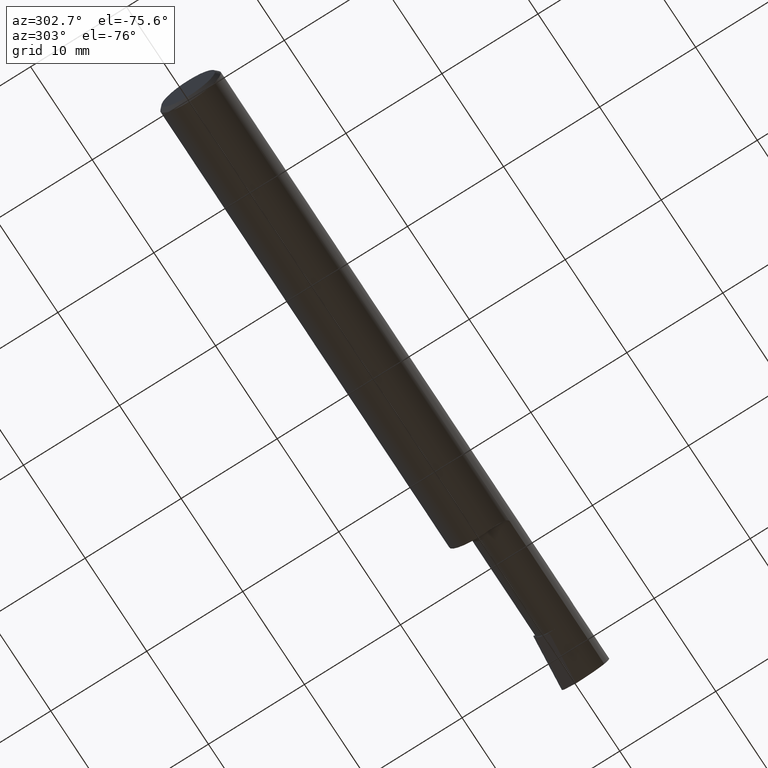
[diagram: clean part render]
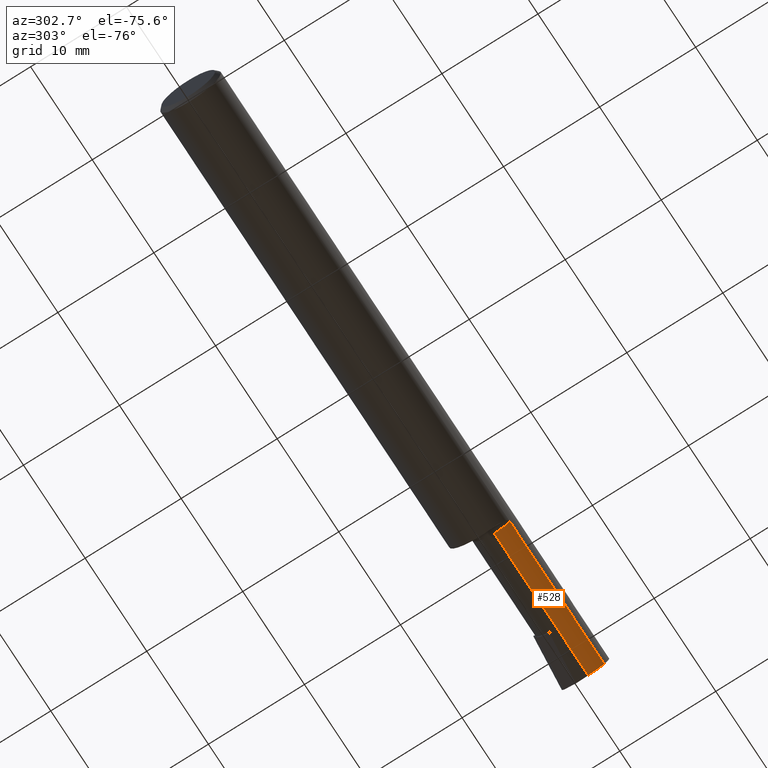
[diagram: same view with one face highlighted and labeled with its STEP entity id]
A machine part, auxiliary view. The second image highlights one B-rep face of the part: STEP entity #528.
In plain terms, the highlighted cylindrical surface (edge-blend (fillet) strip) has radius 2.2644 mm, axis along (-1, -0, -0).
Its self-contained STEP definition (entity closure, byte-faithful):
#3 = EDGE_LOOP ( 'NONE', ( #512, #264, #67, #202, #160 ) ) ;
#24 = DIRECTION ( 'NONE',  ( 0.0000000000000000000, 0.0000000000000000000, 1.000000000000000000 ) ) ;
#67 = ORIENTED_EDGE ( 'NONE', *, *, #630, .F. ) ;
#85 = CARTESIAN_POINT ( 'NONE',  ( 2.084999999999999964, -0.1088159090909091853, -0.06120964326573867520 ) ) ;
#123 = EDGE_CURVE ( 'NONE', #701, #224, #559, .T. ) ;
#136 = EDGE_CURVE ( 'NONE', #564, #238, #516, .T. ) ;
#160 = ORIENTED_EDGE ( 'NONE', *, *, #167, .F. ) ;
#167 = EDGE_CURVE ( 'NONE', #224, #238, #634, .T. ) ;
#202 = ORIENTED_EDGE ( 'NONE', *, *, #136, .T. ) ;
#205 = CYLINDRICAL_SURFACE ( 'NONE', #411, 0.08914999999999995151 ) ;
#206 = VECTOR ( 'NONE', #555, 39.37007874015748143 ) ;
#224 = VERTEX_POINT ( 'NONE', #663 ) ;
#238 = VERTEX_POINT ( 'NONE', #515 ) ;
#248 = CARTESIAN_POINT ( 'NONE',  ( 0.0000000000000000000, -0.04399999999999999745, 0.0000000000000000000 ) ) ;
#263 = CARTESIAN_POINT ( 'NONE',  ( 0.0000000000000000000, -0.04399999999999998357, -0.08914999999999995151 ) ) ;
#264 = ORIENTED_EDGE ( 'NONE', *, *, #552, .F. ) ;
#277 = DIRECTION ( 'NONE',  ( -1.000000000000000000, -0.0000000000000000000, -0.0000000000000000000 ) ) ;
#281 = CARTESIAN_POINT ( 'NONE',  ( 1.885000000000000009, -0.04399999999999999745, 0.0000000000000000000 ) ) ;
#338 = CARTESIAN_POINT ( 'NONE',  ( 2.485982323393565174, -0.04399999999999999745, -0.08914999999999999314 ) ) ;
#388 = CARTESIAN_POINT ( 'NONE',  ( 2.485942244485980002, -0.09173194857106682643, -0.07930013314426066773 ) ) ;
#405 = LINE ( 'NONE', #592, #655 ) ;
#407 =( BOUNDED_CURVE ( )  B_SPLINE_CURVE ( 3, ( #642, #388, #440, #708 ),
 .UNSPECIFIED., .F., .F. ) 
 B_SPLINE_CURVE_WITH_KNOTS ( ( 4, 4 ),
 ( 5.679229040429019548, 6.493234751459754150 ),
 .UNSPECIFIED. ) 
 CURVE ( )  GEOMETRIC_REPRESENTATION_ITEM ( )  RATIONAL_B_SPLINE_CURVE ( ( 1.000000000000000000, 0.9455409277260482526, 0.9455409277260482526, 1.000000000000000000 ) ) 
 REPRESENTATION_ITEM ( '' )  );
#411 = AXIS2_PLACEMENT_3D ( 'NONE', #248, #639, #24 ) ;
#440 = CARTESIAN_POINT ( 'NONE',  ( 2.485330758133041495, -0.06888227343086729404, -0.08914999999999995151 ) ) ;
#496 = AXIS2_PLACEMENT_3D ( 'NONE', #281, #277, #653 ) ;
#502 = CARTESIAN_POINT ( 'NONE',  ( 2.285000000000000142, -0.04399999999999999745, -0.08914999999999999314 ) ) ;
#512 = ORIENTED_EDGE ( 'NONE', *, *, #123, .F. ) ;
#515 = CARTESIAN_POINT ( 'NONE',  ( 1.885000000000000009, -0.1088159090909094073, -0.06120964326573841152 ) ) ;
#516 = LINE ( 'NONE', #85, #206 ) ;
#528 = ADVANCED_FACE ( 'NONE', ( #692 ), #205, .T. ) ;
#538 = VECTOR ( 'NONE', #650, 39.37007874015748143 ) ;
#541 = CARTESIAN_POINT ( 'NONE',  ( 2.487716879513912627, -0.1088159090909091853, -0.06120964326573867520 ) ) ;
#552 = EDGE_CURVE ( 'NONE', #727, #701, #405, .T. ) ;
#555 = DIRECTION ( 'NONE',  ( -1.000000000000000000, -0.0000000000000000000, -0.0000000000000000000 ) ) ;
#559 = LINE ( 'NONE', #263, #538 ) ;
#564 = VERTEX_POINT ( 'NONE', #541 ) ;
#592 = CARTESIAN_POINT ( 'NONE',  ( 2.500000000000000000, -0.04399999999999999745, -0.08914999999999999314 ) ) ;
#597 = DIRECTION ( 'NONE',  ( -1.000000000000000000, 5.691349986800549142E-18, -0.0000000000000000000 ) ) ;
#630 = EDGE_CURVE ( 'NONE', #564, #727, #407, .T. ) ;
#634 = CIRCLE ( 'NONE', #496, 0.08914999999999993763 ) ;
#639 = DIRECTION ( 'NONE',  ( -1.000000000000000000, -0.0000000000000000000, -0.0000000000000000000 ) ) ;
#642 = CARTESIAN_POINT ( 'NONE',  ( 2.487716879513912627, -0.1088159090909091853, -0.06120964326573867520 ) ) ;
#650 = DIRECTION ( 'NONE',  ( -1.000000000000000000, -0.0000000000000000000, -0.0000000000000000000 ) ) ;
#653 = DIRECTION ( 'NONE',  ( 0.0000000000000000000, 0.0000000000000000000, 1.000000000000000000 ) ) ;
#655 = VECTOR ( 'NONE', #597, 39.37007874015748143 ) ;
#663 = CARTESIAN_POINT ( 'NONE',  ( 1.885000000000000009, -0.04399999999999997663, -0.08914999999999993763 ) ) ;
#692 = FACE_OUTER_BOUND ( 'NONE', #3, .T. ) ;
#701 = VERTEX_POINT ( 'NONE', #502 ) ;
#708 = CARTESIAN_POINT ( 'NONE',  ( 2.485982323393565174, -0.04399999999999999745, -0.08914999999999999314 ) ) ;
#727 = VERTEX_POINT ( 'NONE', #338 ) ;